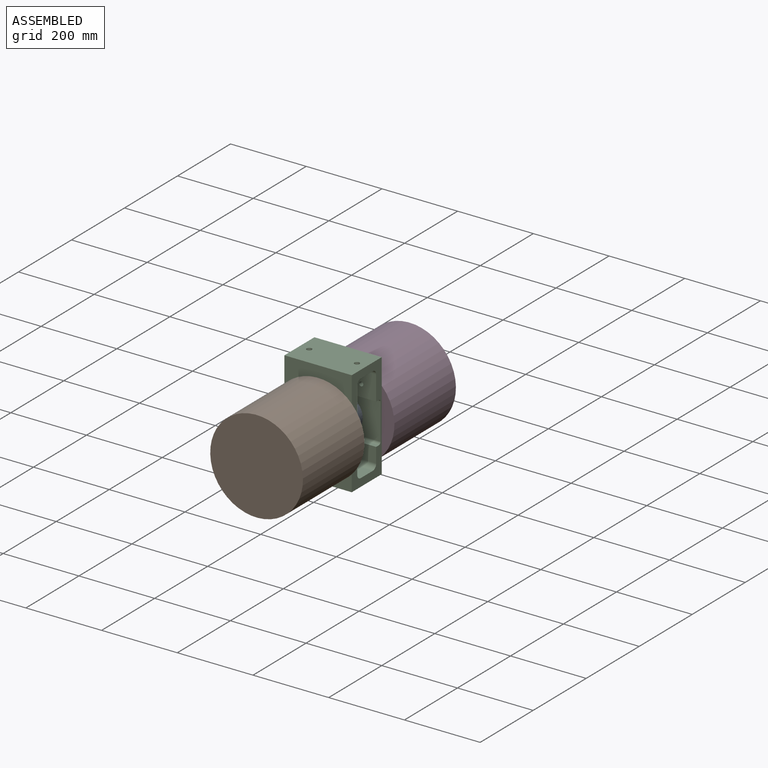
[diagram: assembled view]
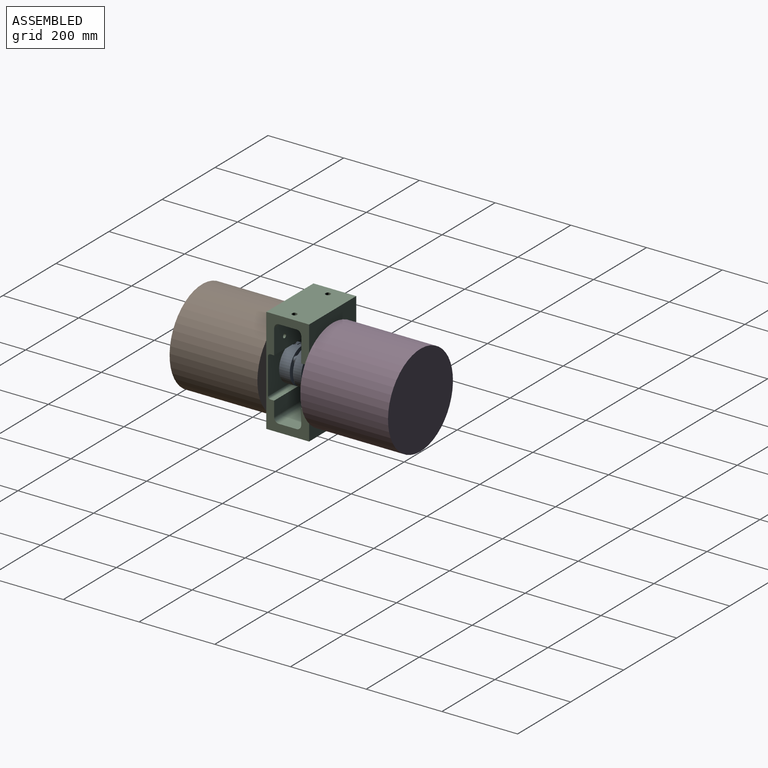
[diagram: assembled view, second angle]
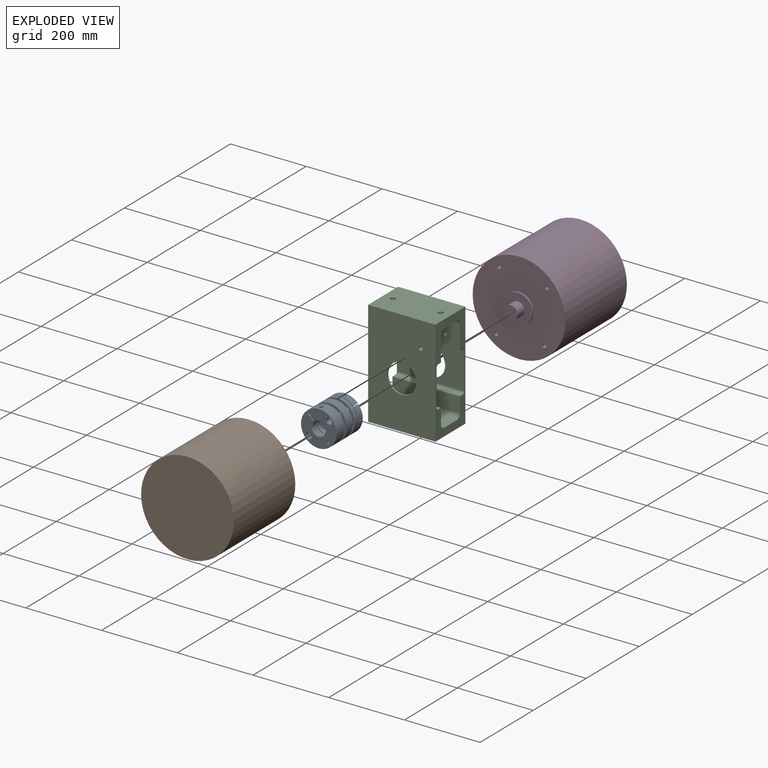
[diagram: exploded view]
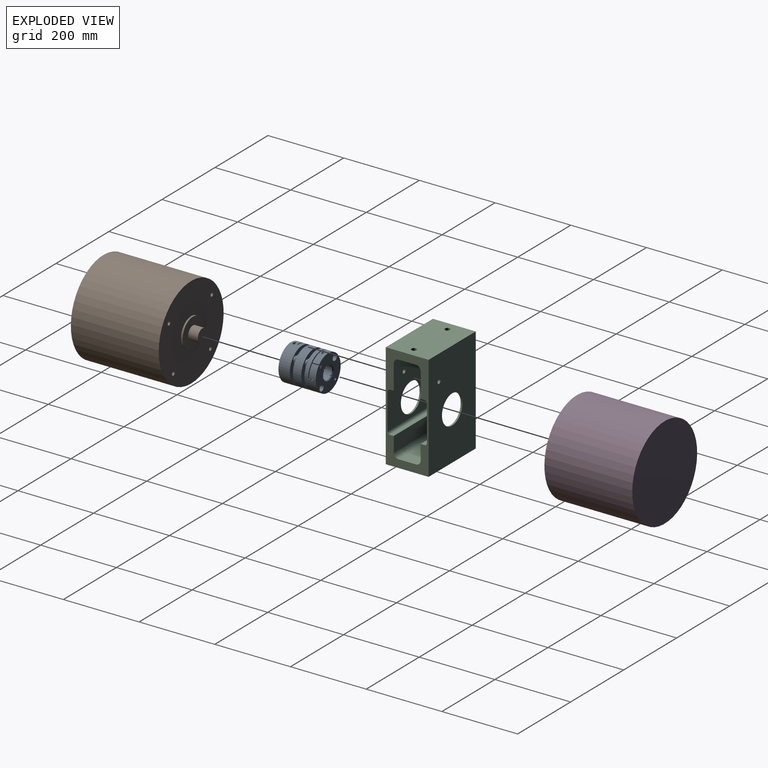
[diagram: exploded view, second angle]
ASSEMBLY  parts=4 mates=4
PART A: 228 faces, bbox 94x94x98.6 mm
  f0: cylinder r=6.71mm len=13.43mm, axis (0,0,-1), area 43.8mm2, adj f1,f169,f227
  f1: cylinder r=6.71mm len=13.43mm, axis (0,0,-1), area 43.8mm2, adj f0,f169,f227
  f2: plane 8.14x7.05mm, normal (0,0,1), area 43mm2, adj f3,f4,f5,f6,f7,f8
  f3: plane 3.53x2.04mm, normal (0.87,-0.5,0), area 4.7mm2, adj f2,f4,f8,f9
  f4: plane 3.53x2.04mm, normal (0.87,0.5,0), area 4.7mm2, adj f2,f3,f5,f9
  f5: plane 4.07x1.14mm, normal (0,1,0), area 4.7mm2, adj f2,f4,f6,f9
  f6: plane 3.53x2.04mm, normal (-0.87,0.5,0), area 4.7mm2, adj f2,f5,f7,f9
  f7: plane 3.53x2.04mm, normal (-0.87,-0.5,0), area 4.7mm2, adj f2,f6,f8,f9
  f8: plane 4.07x1.14mm, normal (0,-1,0), area 4.7mm2, adj f2,f3,f7,f9
  f9: plane 14.1x14.1mm, normal (0,0,1), area 113.1mm2, adj f3,f4,f5,f6,f7,f8,f10,f11
  f10: cylinder r=7.05mm len=14.1mm, axis (0,0,1), area 35.4mm2, adj f9,f11,f12
  f11: cylinder r=7.05mm len=14.1mm, axis (0,0,1), area 35.4mm2, adj f9,f10,f12
  f12: plane 14.1x14.1mm, normal (0,0,-1), area 14.5mm2, adj f10,f11,f13,f14
  f13: cylinder r=6.71mm len=13.43mm, axis (0,0,-1), area 43.8mm2, adj f12,f14,f169
  f14: cylinder r=6.71mm len=13.43mm, axis (0,0,-1), area 43.8mm2, adj f12,f13,f169
  f15: cylinder r=6.71mm len=13.43mm, axis (0,0,-1), area 43.8mm2, adj f169,f170,f227
  f16: plane 8.14x7.05mm, normal (0,0,1), area 43mm2, adj f17,f18,f19,f20,f21,f22
  f17: plane 3.53x2.04mm, normal (0.87,-0.5,0), area 4.7mm2, adj f16,f18,f22,f23
  f18: plane 3.53x2.04mm, normal (0.87,0.5,0), area 4.7mm2, adj f16,f17,f19,f23
  f19: plane 4.07x1.14mm, normal (0,1,0), area 4.7mm2, adj f16,f18,f20,f23
  f20: plane 3.53x2.04mm, normal (-0.87,0.5,0), area 4.7mm2, adj f16,f19,f21,f23
  f21: plane 3.53x2.04mm, normal (-0.87,-0.5,0), area 4.7mm2, adj f16,f20,f22,f23
  f22: plane 4.07x1.14mm, normal (0,-1,0), area 4.7mm2, adj f16,f17,f21,f23
  f23: plane 14.1x14.1mm, normal (0,0,1), area 113.1mm2, adj f17,f18,f19,f20,f21,f22,f24,f25
  f24: cylinder r=7.05mm len=14.1mm, axis (0,0,1), area 35.4mm2, adj f23,f25,f26
  f25: cylinder r=7.05mm len=14.1mm, axis (0,0,1), area 35.4mm2, adj f23,f24,f26
  f26: plane 14.1x14.1mm, normal (0,0,-1), area 14.5mm2, adj f24,f25,f27,f28
  f27: cylinder r=6.71mm len=13.43mm, axis (0,0,-1), area 43.8mm2, adj f26,f28,f169
  f28: cylinder r=6.71mm len=13.43mm, axis (0,0,-1), area 43.8mm2, adj f26,f27,f169
  f29: cylinder r=21.01mm len=42.01mm, axis (0,0,1), area 274.1mm2, adj f30,f167,f169
  f30: cylinder r=21.01mm len=42.01mm, axis (0,0,1), area 274.1mm2, adj f29,f167,f169
  f31: plane 5.48x0.71mm, normal (0,0,1), area 2.6mm2, adj f33,f153
  f32: cylinder r=6.71mm len=13.43mm, axis (0,0,-1), area 43.8mm2, adj f33,f138,f154
  f33: cylinder r=6.71mm len=13.43mm, axis (0,0,-1), area 43.8mm2, adj f31,f32,f138,f154
  f34: plane 5.48x0.71mm, normal (0,0,1), area 2.6mm2, adj f35,f36,f146,f153
  f35: cylinder r=6.71mm len=13.43mm, axis (0,0,-1), area 43.8mm2, adj f34,f36,f138,f154
  f36: cylinder r=6.71mm len=13.43mm, axis (0,0,-1), area 43.8mm2, adj f34,f35,f138,f154
  f37: plane 5.48x0.71mm, normal (0,0,1), area 2.6mm2, adj f38,f146
  f38: cylinder r=6.71mm len=13.43mm, axis (0,0,-1), area 43.8mm2, adj f37,f39,f138,f154
  f39: cylinder r=6.71mm len=13.43mm, axis (0,0,-1), area 43.8mm2, adj f38,f138,f154
  f40: cylinder r=21.01mm len=42.01mm, axis (0,0,-1), area 274.1mm2, adj f41,f136,f138
  f41: cylinder r=21.01mm len=42.01mm, axis (0,0,-1), area 274.1mm2, adj f40,f136,f138
  f42: plane 8.14x7.05mm, normal (0,0,-1), area 43mm2, adj f43,f44,f45,f46,f47,f48
  f43: plane 3.53x2.04mm, normal (-0.87,-0.5,0), area 4.7mm2, adj f42,f44,f48,f49
  f44: plane 3.53x2.04mm, normal (-0.87,0.5,0), area 4.7mm2, adj f42,f43,f45,f49
  f45: plane 4.07x1.14mm, normal (0,1,0), area 4.7mm2, adj f42,f44,f46,f49
  f46: plane 3.53x2.04mm, normal (0.87,0.5,0), area 4.7mm2, adj f42,f45,f47,f49
  f47: plane 3.53x2.04mm, normal (0.87,-0.5,0), area 4.7mm2, adj f42,f46,f48,f49
  f48: plane 4.07x1.14mm, normal (0,-1,0), area 4.7mm2, adj f42,f43,f47,f49
  f49: plane 14.1x14.1mm, normal (0,0,-1), area 113.1mm2, adj f43,f44,f45,f46,f47,f48,f50,f51
  f50: cylinder r=7.05mm len=14.1mm, axis (0,0,-1), area 35.4mm2, adj f49,f51,f52
  f51: cylinder r=7.05mm len=14.1mm, axis (0,0,-1), area 35.4mm2, adj f49,f50,f52
  f52: plane 14.1x14.1mm, normal (0,0,1), area 14.5mm2, adj f50,f51,f53,f54
  f53: cylinder r=6.71mm len=13.43mm, axis (0,0,-1), area 43.8mm2, adj f52,f54,f136
  f54: cylinder r=6.71mm len=13.43mm, axis (0,0,-1), area 43.8mm2, adj f52,f53,f136
  f55: plane 8.14x7.05mm, normal (0,0,-1), area 43mm2, adj f56,f57,f58,f59,f60,f61
  f56: plane 3.53x2.04mm, normal (-0.87,-0.5,0), area 4.7mm2, adj f55,f57,f61,f62
  f57: plane 3.53x2.04mm, normal (-0.87,0.5,0), area 4.7mm2, adj f55,f56,f58,f62
  f58: plane 4.07x1.14mm, normal (0,1,0), area 4.7mm2, adj f55,f57,f59,f62
  f59: plane 3.53x2.04mm, normal (0.87,0.5,0), area 4.7mm2, adj f55,f58,f60,f62
  f60: plane 3.53x2.04mm, normal (0.87,-0.5,0), area 4.7mm2, adj f55,f59,f61,f62
  f61: plane 4.07x1.14mm, normal (0,-1,0), area 4.7mm2, adj f55,f56,f60,f62
  f62: plane 14.1x14.1mm, normal (0,0,-1), area 113.1mm2, adj f56,f57,f58,f59,f60,f61,f63,f64
  f63: cylinder r=7.05mm len=14.1mm, axis (0,0,-1), area 35.4mm2, adj f62,f64,f65
  f64: cylinder r=7.05mm len=14.1mm, axis (0,0,-1), area 35.4mm2, adj f62,f63,f65
  f65: plane 14.1x14.1mm, normal (0,0,1), area 14.5mm2, adj f63,f64,f66,f67
  f66: cylinder r=6.71mm len=13.43mm, axis (0,0,-1), area 43.8mm2, adj f65,f67,f136
  f67: cylinder r=6.71mm len=13.43mm, axis (0,0,-1), area 43.8mm2, adj f65,f66,f136
  f68: cylinder r=6.71mm len=13.43mm, axis (0,0,-1), area 43.8mm2, adj f69,f127,f136
  f69: cylinder r=6.71mm len=13.43mm, axis (0,0,-1), area 43.8mm2, adj f68,f127,f136
  f70: cylinder r=6.71mm len=13.43mm, axis (0,0,-1), area 43.8mm2, adj f127,f128,f136
  f71: plane 3.7x3.2mm, normal (-1,0,0), area 8.9mm2, adj f72,f73,f74,f75,f76,f77
  f72: plane 1.6x1.6mm, normal (0,0.5,-0.87), area 3mm2, adj f71,f73,f77,f80
  f73: plane 1.6x1.6mm, normal (0,-0.5,-0.87), area 3mm2, adj f71,f72,f74,f80
  f74: plane 1.85x1.6mm, normal (0,-1,0), area 3mm2, adj f71,f73,f75,f80
  f75: plane 1.6x1.6mm, normal (0,-0.5,0.87), area 3mm2, adj f71,f74,f76,f80
  f76: plane 1.6x1.6mm, normal (0,0.5,0.87), area 3mm2, adj f71,f75,f77,f80
  f77: plane 1.85x1.6mm, normal (0,1,0), area 3mm2, adj f71,f72,f76,f80
  f78: cylinder r=3.6mm len=7.2mm, axis (-1,0,0), area 24.7mm2, adj f79,f82,f83
  f79: cone r=2.95mm half-angle=45deg, axis (1,0,0), area 7.2mm2, adj f78,f80,f81
  f80: plane 6.24x6.24mm, normal (-1,0,0), area 21.7mm2, adj f72,f73,f74,f75,f76,f77,f79,f81
  f81: cone r=2.95mm half-angle=45deg, axis (1,0,0), area 7.2mm2, adj f79,f80,f82
  f82: cylinder r=3.6mm len=7.2mm, axis (-1,0,0), area 24.7mm2, adj f78,f81,f83
  f83: plane 8x8mm, normal (-1,0,0), area 9.6mm2, adj f78,f82,f84,f85
  f84: cylinder r=4mm len=12.67mm, axis (-1,0,0), area 105.7mm2, adj f83,f85,f126
  f85: cylinder r=4mm len=12.67mm, axis (-1,0,0), area 105.7mm2, adj f83,f84,f126
  f86: plane 6.27x6.27mm, normal (0,0,-1), area 30.8mm2, adj f87,f88
  f87: cylinder r=3.13mm len=30mm, axis (0,0,-1), area 295.3mm2, adj f86,f88,f123
  f88: cylinder r=3.13mm len=30mm, axis (0,0,-1), area 295.3mm2, adj f86,f87,f123
  f89: cylinder r=7.83mm len=30mm, axis (0,0,-1), area 738.3mm2, adj f90,f123,f127
  f90: cylinder r=7.83mm len=30mm, axis (0,0,-1), area 738.3mm2, adj f89,f123,f127
  f91: cylinder r=2mm len=33.48mm, axis (-1,0,0), area 193.3mm2, adj f92,f112,f114,f115
  f92: cylinder r=2mm len=33.48mm, axis (-1,0,0), area 193.3mm2, adj f91,f112,f114,f115
  f93: plane 6.27x6.27mm, normal (0,0,-1), area 30.8mm2, adj f94,f95
  f94: cylinder r=3.13mm len=10mm, axis (0,0,-1), area 98.4mm2, adj f93,f95,f111
  f95: cylinder r=3.13mm len=10mm, axis (0,0,-1), area 98.4mm2, adj f93,f94,f111
  f96: cylinder r=7.83mm len=15.67mm, axis (0,0,-1), area 246.1mm2, adj f97,f111,f127
  f97: cylinder r=7.83mm len=15.67mm, axis (0,0,-1), area 246.1mm2, adj f96,f111,f127
  f98: plane 3.8x3.8mm, normal (1,0,0), area 11.3mm2, adj f99,f100
  f99: cylinder r=1.9mm len=34.82mm, axis (1,0,0), area 207.8mm2, adj f98,f100,f101
  f100: cylinder r=1.9mm len=34.82mm, axis (1,0,0), area 207.8mm2, adj f98,f99,f101
  f101: plane 4x4mm, normal (1,0,0), area 1.2mm2, adj f99,f100,f102,f103
  f102: cylinder r=2mm len=22.56mm, axis (-1,0,0), area 137.9mm2, adj f101,f103,f104,f124
  f103: cylinder r=2mm len=22.56mm, axis (-1,0,0), area 137.9mm2, adj f101,f102,f104,f124
  f104: plane 17.65x16.1mm, normal (1,0,0), area 277.7mm2, adj f102,f103,f105,f119,f122,f123,f124
  f105: plane 34.62x32.3mm, normal (0,0,1), area 709.9mm2, adj f104,f106,f119,f124,f125,f126
  f106: plane 20.86x20.86mm, normal (0.71,0.71,0), area 69.3mm2, adj f105,f111,f119,f126
  f107: cylinder r=7.83mm len=17.65mm, axis (0,0,-1), area 434.3mm2, adj f108,f109,f123
  f108: cylinder r=7.83mm len=17.65mm, axis (0,0,-1), area 434.3mm2, adj f107,f109,f123
  f109: plane 80.23x46.06mm, normal (0,0,1), area 2011.8mm2, adj f107,f108,f110,f112,f113,f114,f115,f118
  f110: plane 20.86x20.86mm, normal (0.71,0.71,0), area 69.3mm2, adj f109,f111,f112,f118
  f111: plane 80.24x80.24mm, normal (0,0,-1), area 2765.6mm2, adj f94,f95,f96,f97,f106,f110,f112,f118
  f112: cylinder r=47mm len=94.01mm, axis (0,0,1), area 4134.4mm2, adj f91,f92,f109,f110,f111,f113,f123,f126
  f113: plane 17.65x7.44mm, normal (-1,0,0), area 131.4mm2, adj f109,f112,f114,f123
  f114: cylinder r=3.13mm len=17.65mm, axis (0,0,-1), area 133.4mm2, adj f91,f92,f109,f113,f115,f123
  f115: plane 17.65x16.1mm, normal (-1,0,0), area 277.7mm2, adj f91,f92,f109,f114,f116,f118,f123
  f116: cone r=17.33mm half-angle=45deg, axis (0,0,-1), area 152.8mm2, adj f115,f117,f118,f123
  f117: plane 6.03x5.13mm, normal (-1,0,0), area 13.6mm2, adj f116,f118,f120,f123
  f118: cylinder r=17.5mm len=35mm, axis (0,0,1), area 1428.7mm2, adj f109,f110,f111,f115,f116,f117,f119,f120
  f119: cylinder r=17.5mm len=35mm, axis (0,0,1), area 1493.3mm2, adj f104,f105,f106,f111,f118,f120,f121,f122
  f120: plane 6.04x5.14mm, normal (0,0.65,-0.76), area 14.8mm2, adj f117,f118,f119,f121,f123
  f121: plane 6.03x5.13mm, normal (1,0,0), area 13.6mm2, adj f119,f120,f122,f123
  f122: cone r=17.33mm half-angle=45deg, axis (0,0,-1), area 152.8mm2, adj f104,f119,f121,f123
  f123: plane 94.01x94mm, normal (0,0,-1), area 5259.9mm2, adj f87,f88,f89,f90,f104,f107,f108,f112
  f124: cylinder r=3.13mm len=17.65mm, axis (0,0,-1), area 133.4mm2, adj f102,f103,f104,f105,f123,f125
  f125: plane 17.65x7.44mm, normal (1,0,0), area 131.4mm2, adj f105,f123,f124,f126
  f126: cylinder r=47mm len=94.01mm, axis (0,0,1), area 4252.7mm2, adj f84,f85,f105,f106,f111,f112,f123,f125
  f127: plane 94.01x94.01mm, normal (0,0,1), area 5309.6mm2, adj f68,f69,f70,f89,f90,f96,f97,f112
  f128: cylinder r=6.71mm len=13.43mm, axis (0,0,-1), area 43.8mm2, adj f70,f127,f136
  f129: plane 37.94x37.94mm, normal (-0.71,0.71,0), area 222.8mm2, adj f130,f136,f137,f138
  f130: cylinder r=6.71mm len=9.5mm, axis (0,0,1), area 43.8mm2, adj f129,f131,f136,f138
  f131: plane 37.94x37.94mm, normal (0.71,0.71,0), area 222.8mm2, adj f130,f132,f136,f138
  f132: cylinder r=6.71mm len=9.5mm, axis (0,0,1), area 43.8mm2, adj f131,f133,f136,f138
  f133: plane 37.94x37.94mm, normal (0.71,-0.71,0), area 222.8mm2, adj f132,f134,f136,f138
  f134: cylinder r=6.71mm len=9.5mm, axis (0,0,1), area 43.8mm2, adj f133,f135,f136,f138
  f135: plane 37.94x37.94mm, normal (-0.71,-0.71,0), area 222.8mm2, adj f134,f136,f137,f138
  f136: plane 89.31x89.31mm, normal (0,0,-1), area 2508.5mm2, adj f40,f41,f53,f54,f66,f67,f68,f69
  f137: cylinder r=6.71mm len=9.5mm, axis (0,0,1), area 43.8mm2, adj f129,f135,f136,f138
  f138: plane 89.31x89.31mm, normal (0,0,1), area 2508.5mm2, adj f32,f33,f35,f36,f38,f39,f40,f41
  f139: cylinder r=6.71mm len=13.43mm, axis (0,0,-1), area 43.8mm2, adj f138,f140,f141,f154
  f140: cylinder r=6.71mm len=13.43mm, axis (0,0,-1), area 43.8mm2, adj f138,f139,f141,f154
  f141: plane 5.48x0.71mm, normal (0,0,1), area 2.6mm2, adj f139,f140,f146,f153
  f142: cylinder r=6.71mm len=13.43mm, axis (0,0,-1), area 43.8mm2, adj f143,f144,f157,f167
  f143: cylinder r=6.71mm len=13.43mm, axis (0,0,-1), area 43.8mm2, adj f142,f144,f157,f167
  f144: plane 5.48x0.71mm, normal (0,0,-1), area 2.6mm2, adj f142,f143,f146,f153
  f145: plane 5.48x0.71mm, normal (0,0,-1), area 2.6mm2, adj f146,f158
  f146: cylinder r=30.55mm len=61.1mm, axis (0,0,-1), area 2111.2mm2, adj f34,f37,f141,f144,f145,f149,f153,f154
  f147: cylinder r=6.71mm len=13.43mm, axis (0,0,-1), area 43.8mm2, adj f148,f149,f157,f167
  f148: cylinder r=6.71mm len=13.43mm, axis (0,0,-1), area 43.8mm2, adj f147,f149,f157,f167
  f149: plane 5.48x0.71mm, normal (0,0,-1), area 2.6mm2, adj f146,f147,f148,f153
  f150: cylinder r=6.71mm len=13.43mm, axis (0,0,-1), area 43.8mm2, adj f151,f157,f167
  f151: cylinder r=6.71mm len=13.43mm, axis (0,0,-1), area 43.8mm2, adj f150,f152,f157,f167
  f152: plane 5.48x0.71mm, normal (0,0,-1), area 2.6mm2, adj f151,f153
  f153: cylinder r=30.55mm len=61.1mm, axis (0,0,-1), area 2111.2mm2, adj f31,f34,f141,f144,f146,f149,f152,f154
  f154: plane 94.01x94.01mm, normal (0,0,-1), area 3452mm2, adj f32,f33,f35,f36,f38,f39,f139,f140
  f155: cylinder r=47mm len=94.01mm, axis (0,0,-1), area 3248.1mm2, adj f154,f156,f157
  f156: cylinder r=47mm len=94.01mm, axis (0,0,-1), area 3248.1mm2, adj f154,f155,f157
  f157: plane 94.01x94.01mm, normal (0,0,1), area 3452mm2, adj f142,f143,f146,f147,f148,f150,f151,f153
  f158: cylinder r=6.71mm len=13.43mm, axis (0,0,-1), area 43.8mm2, adj f145,f157,f159,f167
  f159: cylinder r=6.71mm len=13.43mm, axis (0,0,-1), area 43.8mm2, adj f157,f158,f167
  f160: plane 37.94x37.94mm, normal (-0.71,0.71,0), area 222.8mm2, adj f161,f167,f168,f169
  f161: cylinder r=6.71mm len=9.5mm, axis (0,0,1), area 43.8mm2, adj f160,f162,f167,f169
  f162: plane 37.94x37.94mm, normal (0.71,0.71,0), area 222.8mm2, adj f161,f163,f167,f169
  f163: cylinder r=6.71mm len=9.5mm, axis (0,0,1), area 43.8mm2, adj f162,f164,f167,f169
  f164: plane 37.94x37.94mm, normal (0.71,-0.71,0), area 222.8mm2, adj f163,f165,f167,f169
  f165: cylinder r=6.71mm len=9.5mm, axis (0,0,1), area 43.8mm2, adj f164,f166,f167,f169
  f166: plane 37.94x37.94mm, normal (-0.71,-0.71,0), area 222.8mm2, adj f165,f167,f168,f169
  f167: plane 89.31x89.31mm, normal (0,0,-1), area 2508.5mm2, adj f29,f30,f142,f143,f147,f148,f150,f151
  f168: cylinder r=6.71mm len=9.5mm, axis (0,0,1), area 43.8mm2, adj f160,f166,f167,f169
  f169: plane 89.31x89.31mm, normal (0,0,1), area 2508.5mm2, adj f0,f1,f13,f14,f15,f27,f28,f29
  f170: cylinder r=6.71mm len=13.43mm, axis (0,0,-1), area 43.8mm2, adj f15,f169,f227
  f171: plane 4.43x3.84mm, normal (0,1,0), area 12.8mm2, adj f172,f173,f174,f175,f176,f177
  f172: plane 1.92x1.14mm, normal (0.5,0,-0.87), area 2.5mm2, adj f171,f173,f177,f180
  f173: plane 1.92x1.14mm, normal (-0.5,0,-0.87), area 2.5mm2, adj f171,f172,f174,f180
  f174: plane 2.22x1.14mm, normal (-1,0,0), area 2.5mm2, adj f171,f173,f175,f180
  f175: plane 1.92x1.14mm, normal (-0.5,0,0.87), area 2.5mm2, adj f171,f174,f176,f180
  f176: plane 1.92x1.14mm, normal (0.5,0,0.87), area 2.5mm2, adj f171,f175,f177,f180
  f177: plane 2.22x1.14mm, normal (1,0,0), area 2.5mm2, adj f171,f172,f176,f180
  f178: cylinder r=3.6mm len=7.2mm, axis (0,1,0), area 24.7mm2, adj f179,f182,f183
  f179: cone r=2.95mm half-angle=45deg, axis (0,-1,0), area 7.2mm2, adj f178,f180,f181
  f180: plane 6.24x6.24mm, normal (0,1,0), area 17.8mm2, adj f172,f173,f174,f175,f176,f177,f179,f181
  f181: cone r=2.95mm half-angle=45deg, axis (0,-1,0), area 7.2mm2, adj f179,f180,f182
  f182: cylinder r=3.6mm len=7.2mm, axis (0,1,0), area 24.7mm2, adj f178,f181,f183
  f183: plane 8x8mm, normal (0,1,0), area 9.6mm2, adj f178,f182,f184,f185
  f184: cylinder r=4mm len=9.52mm, axis (0,1,0), area 82.3mm2, adj f183,f185,f226
  f185: cylinder r=4mm len=13.25mm, axis (0,1,0), area 150.2mm2, adj f183,f184,f226
  f186: plane 6.27x6.27mm, normal (0,0,1), area 30.8mm2, adj f187,f188
  f187: cylinder r=3.13mm len=30mm, axis (0,0,1), area 295.3mm2, adj f186,f188,f214
  f188: cylinder r=3.13mm len=30mm, axis (0,0,1), area 295.3mm2, adj f186,f187,f214
  f189: cylinder r=7.83mm len=30mm, axis (0,0,1), area 738.3mm2, adj f190,f214,f227
  f190: cylinder r=7.83mm len=30mm, axis (0,0,1), area 738.3mm2, adj f189,f214,f227
  f191: cylinder r=7.83mm len=17.65mm, axis (0,0,1), area 434.3mm2, adj f192,f214,f223
  f192: cylinder r=7.83mm len=17.65mm, axis (0,0,1), area 434.3mm2, adj f191,f214,f223
  f193: cylinder r=2mm len=30.62mm, axis (0,1,0), area 183.6mm2, adj f194,f204,f206
  f194: cylinder r=2mm len=33.48mm, axis (0,1,0), area 205.6mm2, adj f193,f204,f206,f207
  f195: plane 6.27x6.27mm, normal (0,0,1), area 30.8mm2, adj f196,f197
  f196: cylinder r=3.13mm len=10mm, axis (0,0,1), area 98.4mm2, adj f195,f197,f203
  f197: cylinder r=3.13mm len=10mm, axis (0,0,1), area 98.4mm2, adj f195,f196,f203
  f198: cylinder r=7.83mm len=15.67mm, axis (0,0,1), area 246.1mm2, adj f199,f203,f227
  f199: cylinder r=7.83mm len=15.67mm, axis (0,0,1), area 246.1mm2, adj f198,f203,f227
  f200: plane 20.86x20.86mm, normal (-0.71,0.71,0), area 69.3mm2, adj f203,f222,f223,f226
  f201: plane 34.62x32.3mm, normal (0,0,-1), area 709.9mm2, adj f202,f204,f205,f206,f207,f208
  f202: plane 20.86x20.86mm, normal (-0.71,0.71,0), area 69.3mm2, adj f201,f203,f204,f208
  f203: plane 80.24x80.24mm, normal (0,0,1), area 2765.6mm2, adj f196,f197,f198,f199,f200,f202,f204,f208
  f204: cylinder r=47mm len=94.01mm, axis (0,0,1), area 4307.9mm2, adj f193,f194,f201,f202,f203,f205,f214,f226
  f205: plane 17.65x7.44mm, normal (0,1,0), area 131.4mm2, adj f201,f204,f206,f214
  f206: cylinder r=3.13mm len=17.65mm, axis (0,0,1), area 128.3mm2, adj f193,f194,f201,f205,f207,f214
  f207: plane 17.65x16.1mm, normal (0,1,0), area 277.7mm2, adj f194,f201,f206,f208,f209,f214
  f208: cylinder r=17.5mm len=35mm, axis (0,0,1), area 999.5mm2, adj f201,f202,f203,f207,f209,f222,f227
  f209: cone r=17.33mm half-angle=45deg, axis (0,0,1), area 152.8mm2, adj f207,f208,f210,f214,f222
  f210: plane 6.03x4.53mm, normal (0,1,0), area 11.8mm2, adj f209,f211,f214,f222
  f211: plane 6.06x4.56mm, normal (-0.6,0,0.8), area 14.1mm2, adj f210,f212,f214,f222
  f212: plane 6.03x4.53mm, normal (0,-1,0), area 11.8mm2, adj f211,f213,f214,f222
  f213: cone r=17.33mm half-angle=45deg, axis (0,0,1), area 152.8mm2, adj f212,f214,f221,f222
  f214: plane 94.01x94mm, normal (0,0,1), area 5259.9mm2, adj f187,f188,f189,f190,f191,f192,f204,f205
  f215: plane 3.8x3.8mm, normal (0,-1,0), area 11.3mm2, adj f216,f217
  f216: cylinder r=1.9mm len=34.82mm, axis (0,-1,0), area 207.8mm2, adj f215,f217,f218
  f217: cylinder r=1.9mm len=34.82mm, axis (0,-1,0), area 207.8mm2, adj f215,f216,f218
  f218: plane 4x4mm, normal (0,-1,0), area 1.2mm2, adj f216,f217,f219,f220
  f219: cylinder r=2mm len=21.11mm, axis (0,1,0), area 132.6mm2, adj f218,f220,f224
  f220: cylinder r=2mm len=21.99mm, axis (0,1,0), area 137.8mm2, adj f218,f219,f221,f224
  f221: plane 17.65x16.1mm, normal (0,-1,0), area 277.7mm2, adj f213,f214,f220,f222,f223,f224
  f222: cylinder r=17.5mm len=35mm, axis (0,0,1), area 1923.6mm2, adj f200,f203,f208,f209,f210,f211,f212,f213
  f223: plane 80.23x46.06mm, normal (0,0,-1), area 2011.8mm2, adj f191,f192,f200,f221,f222,f224,f225,f226
  f224: cylinder r=3.13mm len=17.65mm, axis (0,0,1), area 128.3mm2, adj f214,f219,f220,f221,f223,f225
  f225: plane 17.65x7.44mm, normal (0,-1,0), area 131.4mm2, adj f214,f223,f224,f226
  f226: cylinder r=47mm len=94.01mm, axis (0,0,1), area 4079.2mm2, adj f184,f185,f200,f203,f204,f214,f223,f225
  f227: plane 94.01x94.01mm, normal (0,0,-1), area 5309.6mm2, adj f0,f1,f15,f170,f189,f190,f198,f199
PART B: 15 faces, bbox 245x262x245 mm
  f0: cylinder r=17.5mm len=35mm, axis (0,-1,0), area 2803.9mm2, adj f1,f3
  f1: plane 35x35mm, normal (0,1,0), area 962.1mm2, adj f0
  f2: cylinder r=38.5mm len=77mm, axis (0,-1,0), area 1088.6mm2, adj f3,f6
  f3: plane 77x77mm, normal (0,1,0), area 3694.5mm2, adj f0,f2
  f4: cylinder r=122.5mm len=245mm, axis (0,1,0), area 178568.1mm2, adj f5,f6
  f5: plane 245x245mm, normal (0,-1,0), area 47143.5mm2, adj f4
  f6: plane 245x245mm, normal (0,1,0), area 42172.7mm2, adj f2,f4,f7,f9,f11,f13
  f7: cylinder r=5mm len=25mm, axis (0,1,0), area 785.4mm2, adj f6,f8
  f8: plane 10x10mm, normal (0,1,0), area 78.5mm2, adj f7
  f9: cylinder r=5mm len=25mm, axis (0,1,0), area 785.4mm2, adj f6,f10
  f10: plane 10x10mm, normal (0,1,0), area 78.5mm2, adj f9
  f11: cylinder r=5mm len=25mm, axis (0,1,0), area 785.4mm2, adj f6,f12
  f12: plane 10x10mm, normal (0,1,0), area 78.5mm2, adj f11
  f13: cylinder r=5mm len=25mm, axis (0,1,0), area 785.4mm2, adj f6,f14
  f14: plane 10x10mm, normal (0,1,0), area 78.5mm2, adj f13
PART C: 32 faces, bbox 177.8x113x279.4 mm
  f0: cylinder r=38.5mm len=77mm, axis (0,1,0), area 1075.3mm2, adj f8,f26
  f1: plane 279.4x113.03mm, normal (-1,0,0), area 11245.2mm2, adj f2,f3,f4,f5,f8,f9,f10,f11
  f2: plane 177.8x39.5mm, normal (0,1,0), area 7023.7mm2, adj f1,f7,f10,f24
  f3: plane 177.8x39.5mm, normal (0,-1,0), area 7023.7mm2, adj f1,f7,f16,f18
  f4: plane 177.8x113.03mm, normal (0,0,1), area 20096.7mm2, adj f1,f7,f8,f9
  f5: plane 177.8x113.03mm, normal (0,0,-1), area 19810.7mm2, adj f1,f7,f8,f9,f28,f29
  f6: cylinder r=38.5mm len=77mm, axis (0,1,0), area 1075.3mm2, adj f9,f19
  f7: plane 279.4x113.03mm, normal (1,0,0), area 11245.2mm2, adj f2,f3,f4,f5,f8,f9,f10,f11
  f8: plane 279.4x177.8mm, normal (0,-1,0), area 44925.7mm2, adj f0,f1,f4,f5,f7,f31
  f9: plane 279.4x177.8mm, normal (0,1,0), area 44925.7mm2, adj f1,f4,f5,f6,f7,f30
  f10: cylinder r=12.7mm len=177.8mm, axis (1,0,0), area 3547mm2, adj f1,f2,f7,f17
  f11: plane 177.8x64.9mm, normal (0,1,0), area 11444.8mm2, adj f1,f7,f12,f23,f31
  f12: cylinder r=12.7mm len=177.8mm, axis (1,0,0), area 3547mm2, adj f1,f7,f11,f13
  f13: plane 177.8x45.99mm, normal (0,0,1), area 7890.5mm2, adj f1,f7,f12,f14,f28,f29
  f14: cylinder r=12.7mm len=177.8mm, axis (1,0,0), area 3547mm2, adj f1,f7,f13,f15
  f15: plane 177.8x64.9mm, normal (0,-1,0), area 11444.8mm2, adj f1,f7,f14,f21,f30
  f16: cylinder r=12.7mm len=177.8mm, axis (1,0,0), area 3547mm2, adj f1,f3,f7,f17
  f17: plane 177.8x45.99mm, normal (0,0,-1), area 8176.5mm2, adj f1,f7,f10,f16
  f18: plane 177.8x10.03mm, normal (0,0,-1), area 1782.7mm2, adj f1,f3,f7,f20
  f19: plane 177.8x95.25mm, normal (0,-1,0), area 12278.8mm2, adj f1,f6,f7,f20,f22
  f20: cylinder r=6.35mm len=177.8mm, axis (-1,0,0), area 1773.5mm2, adj f1,f7,f18,f19
  f21: plane 177.8x10.03mm, normal (0,0,1), area 1782.7mm2, adj f1,f7,f15,f22
  f22: cylinder r=6.35mm len=177.8mm, axis (-1,0,0), area 1773.5mm2, adj f1,f7,f19,f21
  f23: plane 177.8x10.03mm, normal (0,0,1), area 1782.7mm2, adj f1,f7,f11,f25
  f24: plane 177.8x10.03mm, normal (0,0,-1), area 1782.7mm2, adj f1,f2,f7,f27
  f25: cylinder r=6.35mm len=177.8mm, axis (-1,0,0), area 1773.5mm2, adj f1,f7,f23,f26
  f26: plane 177.8x95.25mm, normal (0,1,0), area 12278.8mm2, adj f0,f1,f7,f25,f27
  f27: cylinder r=6.35mm len=177.8mm, axis (-1,0,0), area 1773.5mm2, adj f1,f7,f24,f26
  f28: cylinder r=6.75mm len=20.82mm, axis (0,0,1), area 882.7mm2, adj f5,f13
  f29: cylinder r=6.75mm len=20.82mm, axis (0,0,1), area 882.7mm2, adj f5,f13
  f30: cylinder r=5.5mm len=20.82mm, axis (0,-1,0), area 719.5mm2, adj f9,f15
  f31: cylinder r=5.5mm len=20.82mm, axis (0,-1,0), area 719.5mm2, adj f8,f11
PART D: same geometry as B
PLACE A rot(axis=(-0.27,0.68,0.68),150.3deg) t=(-38.26,142.74,-4.93)mm
PLACE B rot(axis=(0,1,0),137.5deg) t=(-38.26,71.45,-4.93)mm
PLACE C rot(axis=(1,0,0),180deg) t=(-38.26,127.96,-4.93)mm fixed
PLACE D rot(axis=(-0.93,0,-0.36),180deg) t=(-38.26,184.48,-4.93)mm
MATE slider A.f29 <-> B.f0  axis (0,1,0) through (-38.26,90.1,-4.93)mm
MATE revolute C.f0 <-> D.f2  axis (0,1,0) through (-38.26,184.48,-4.93)mm
MATE slider A.f29 <-> D.f0  axis (0,1,0) through (-38.26,156.78,-4.93)mm
MATE revolute B.f2 <-> C.f0  axis (0,1,0) through (-38.26,71.45,-4.93)mm
